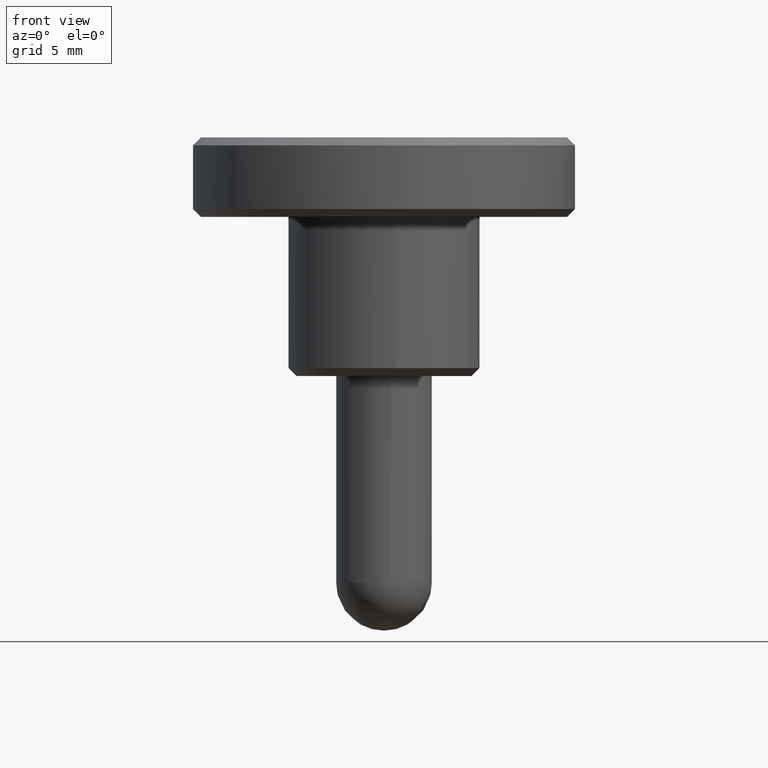
[diagram: clean part render]
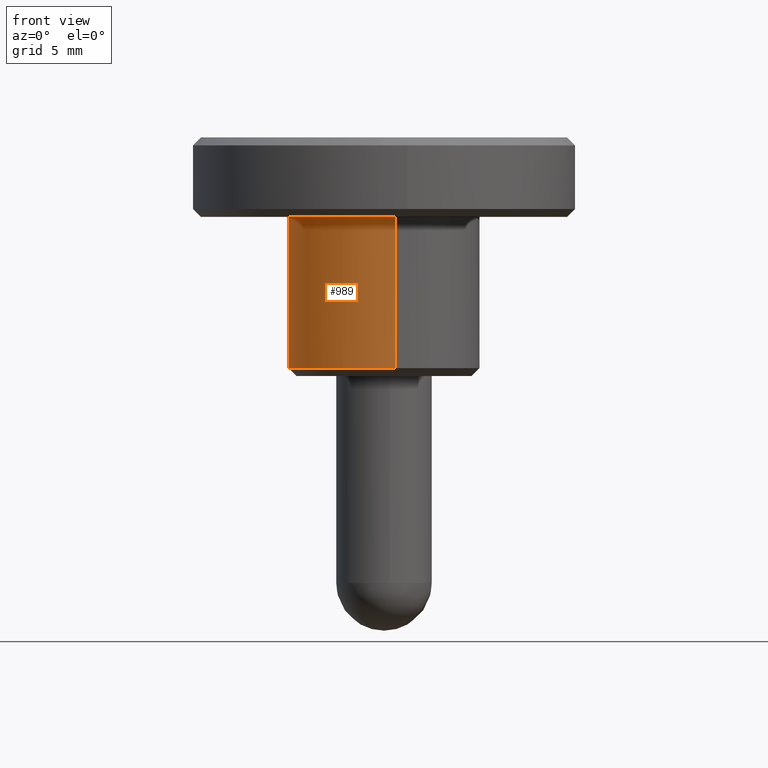
[diagram: same view with one face highlighted and labeled with its STEP entity id]
A machine part, front view. The second image highlights one B-rep face of the part: STEP entity #989.
In plain terms, the highlighted face is a freeform B-spline surface patch.
Its self-contained STEP definition (entity closure, byte-faithful):
#498=CARTESIAN_POINT('',(-2.425292591929944,-5.487982857437931,0.500000000000184));
#499=VERTEX_POINT('',#498);
#500=CARTESIAN_POINT('',(0.744766788128623,-5.953597436113652,0.499999999999956));
#501=VERTEX_POINT('',#500);
#502=CARTESIAN_POINT('',(-2.425292591929945,-5.487982857437931,0.500000000000184));
#503=CARTESIAN_POINT('',(-1.266693703514264,-6.000000000000001,0.499999999999945));
#504=CARTESIAN_POINT('',(0.0,-6.0,0.499999999999945));
#505=CARTESIAN_POINT('',(0.373828945859550,-5.999999999999999,0.499999999999945));
#506=CARTESIAN_POINT('',(0.744766788128623,-5.953597436113652,0.499999999999956));
#514=(BOUNDED_CURVE()B_SPLINE_CURVE(2,(#502,#503,#504,#505,#506),.UNSPECIFIED.,.F.,.U.)B_SPLINE_CURVE_WITH_KNOTS((3,2,3),(0.181361578459786,0.250000000000000,0.271473894288862),.UNSPECIFIED.)CURVE()GEOMETRIC_REPRESENTATION_ITEM()RATIONAL_B_SPLINE_CURVE((0.883326595751729,0.919585087123248,1.0,0.974841767925101,0.954005497578771))REPRESENTATION_ITEM(''));
#515=EDGE_CURVE('',#499,#501,#514,.T.);
#558=CARTESIAN_POINT('',(-0.052357741440624,5.999771551225965,0.499999999999591));
#559=VERTEX_POINT('',#558);
#616=CARTESIAN_POINT('',(-6.0,0.0,0.499999999999945));
#617=VERTEX_POINT('',#616);
#618=CARTESIAN_POINT('',(-6.0,0.0,0.499999999999945));
#619=CARTESIAN_POINT('',(-6.0,-3.908220015545708,0.499999999999945));
#620=CARTESIAN_POINT('',(-2.425292591929945,-5.487982857437931,0.500000000000184));
#628=(BOUNDED_CURVE()B_SPLINE_CURVE(2,(#618,#619,#620),.UNSPECIFIED.,.F.,.U.)B_SPLINE_CURVE_WITH_KNOTS((3,3),(0.0,0.181361578459786),.UNSPECIFIED.)CURVE()GEOMETRIC_REPRESENTATION_ITEM()RATIONAL_B_SPLINE_CURVE((1.0,0.787521694063300,0.883326595751729))REPRESENTATION_ITEM(''));
#629=EDGE_CURVE('',#617,#499,#628,.T.);
#631=CARTESIAN_POINT('',(-0.052357741440624,5.999771551225965,0.499999999999591));
#632=CARTESIAN_POINT('',(-6.000000000000001,5.947868722444771,0.499999999999945));
#633=CARTESIAN_POINT('',(-6.0,0.0,0.499999999999945));
#641=(BOUNDED_CURVE()B_SPLINE_CURVE(2,(#631,#632,#633),.UNSPECIFIED.,.F.,.U.)B_SPLINE_CURVE_WITH_KNOTS((3,3),(0.751539851132867,1.0),.UNSPECIFIED.)CURVE()GEOMETRIC_REPRESENTATION_ITEM()RATIONAL_B_SPLINE_CURVE((0.996414128082234,0.708910829005743,1.0))REPRESENTATION_ITEM(''));
#642=EDGE_CURVE('',#559,#617,#641,.T.);
#883=CARTESIAN_POINT('',(-0.052355695917519,5.999771569075994,10.0));
#884=VERTEX_POINT('',#883);
#885=CARTESIAN_POINT('',(-0.052357741440624,5.999771551225965,0.499999999999591));
#886=CARTESIAN_POINT('',(-0.052355695917519,5.999771569075994,10.0));
#887=QUASI_UNIFORM_CURVE('',1,(#885,#886),.UNSPECIFIED.,.F.,.U.);
#888=EDGE_CURVE('',#559,#884,#887,.T.);
#907=CARTESIAN_POINT('',(0.744759964917347,-5.953598289655638,10.0));
#908=VERTEX_POINT('',#907);
#922=CARTESIAN_POINT('',(0.744766788128623,-5.953597436113652,0.499999999999956));
#923=CARTESIAN_POINT('',(0.744759964917347,-5.953598289655638,10.0));
#924=QUASI_UNIFORM_CURVE('',1,(#922,#923),.UNSPECIFIED.,.F.,.U.);
#925=EDGE_CURVE('',#501,#908,#924,.T.);
#930=CARTESIAN_POINT('',(-0.052359212990243,5.999771538385026,0.262499999999943));
#931=CARTESIAN_POINT('',(-6.052130751375269,5.947412325394783,0.262499999999943));
#932=CARTESIAN_POINT('',(-5.999771538385026,-0.052359212990243,0.262499999999943));
#933=CARTESIAN_POINT('',(-5.947412325394783,-6.052130751375269,0.262499999999943));
#934=CARTESIAN_POINT('',(0.052359212990243,-5.999771538385026,0.262499999999943));
#935=CARTESIAN_POINT('',(0.399900953749042,-5.996738587561654,0.262499999999943));
#936=CARTESIAN_POINT('',(0.744768012478976,-5.953597282953231,0.262499999999943));
#937=CARTESIAN_POINT('',(-0.052359212990243,5.999771538385026,10.243437500000001));
#938=CARTESIAN_POINT('',(-6.052130751375269,5.947412325394783,10.243437500000004));
#939=CARTESIAN_POINT('',(-5.999771538385026,-0.052359212990243,10.243437500000001));
#940=CARTESIAN_POINT('',(-5.947412325394783,-6.052130751375269,10.243437500000004));
#941=CARTESIAN_POINT('',(0.052359212990243,-5.999771538385026,10.243437500000001));
#942=CARTESIAN_POINT('',(0.399900953749042,-5.996738587561654,10.243437500000002));
#943=CARTESIAN_POINT('',(0.744768012478976,-5.953597282953231,10.243437500000006));
#951=(BOUNDED_SURFACE()B_SPLINE_SURFACE(2,1,((#930,#937),(#931,#938),(#932,#939),(#933,#940),(#934,#941),(#935,#942),(#936,#943)),.UNSPECIFIED.,.F.,.F.,.U.)B_SPLINE_SURFACE_WITH_KNOTS((3,2,2,3),(2,2),(0.0,9.941125496954278,19.882250993908560,20.677541033664902),(0.0,9.980937500000064),.UNSPECIFIED.)GEOMETRIC_REPRESENTATION_ITEM()RATIONAL_B_SPLINE_SURFACE(((1.0,1.0),(0.707106781186548,0.707106781186548),(1.0,1.0),(0.707106781186548,0.707106781186548),(1.0,1.0),(0.976568542494924,0.976568542494924),(0.956886118190660,0.956886118190660)))REPRESENTATION_ITEM('')SURFACE());
#952=ORIENTED_EDGE('',*,*,#629,.T.);
#953=ORIENTED_EDGE('',*,*,#515,.T.);
#954=ORIENTED_EDGE('',*,*,#925,.T.);
#955=CARTESIAN_POINT('',(-6.0,0.0,10.0));
#956=VERTEX_POINT('',#955);
#957=CARTESIAN_POINT('',(0.744759964917347,-5.953598289655637,10.0));
#958=CARTESIAN_POINT('',(0.373825494317734,-6.0,10.0));
#959=CARTESIAN_POINT('',(0.0,-6.0,10.0));
#960=CARTESIAN_POINT('',(-6.0,-6.0,10.000000000000002));
#961=CARTESIAN_POINT('',(-6.0,0.0,10.0));
#969=(BOUNDED_CURVE()B_SPLINE_CURVE(2,(#957,#958,#959,#960,#961),.UNSPECIFIED.,.F.,.U.)B_SPLINE_CURVE_WITH_KNOTS((3,2,3),(0.728526298990398,0.750000000000000,1.0),.UNSPECIFIED.)CURVE()GEOMETRIC_REPRESENTATION_ITEM()RATIONAL_B_SPLINE_CURVE((0.954005872659566,0.974841994365839,1.0,0.707106781186548,1.0))REPRESENTATION_ITEM(''));
#970=EDGE_CURVE('',#908,#956,#969,.T.);
#971=ORIENTED_EDGE('',*,*,#970,.T.);
#972=CARTESIAN_POINT('',(-6.0,0.0,10.0));
#973=CARTESIAN_POINT('',(-6.0,5.947870750350011,10.0));
#974=CARTESIAN_POINT('',(-0.052355695917519,5.999771569075994,10.000000000000002));
#982=(BOUNDED_CURVE()B_SPLINE_CURVE(2,(#972,#973,#974),.UNSPECIFIED.,.F.,.U.)B_SPLINE_CURVE_WITH_KNOTS((3,3),(0.0,0.248460208920117),.UNSPECIFIED.)CURVE()GEOMETRIC_REPRESENTATION_ITEM()RATIONAL_B_SPLINE_CURVE((1.0,0.708910758649296,0.996414267061746))REPRESENTATION_ITEM(''));
#983=EDGE_CURVE('',#956,#884,#982,.T.);
#984=ORIENTED_EDGE('',*,*,#983,.T.);
#985=ORIENTED_EDGE('',*,*,#888,.F.);
#986=ORIENTED_EDGE('',*,*,#642,.T.);
#987=EDGE_LOOP('',(#952,#953,#954,#971,#984,#985,#986));
#988=FACE_OUTER_BOUND('',#987,.T.);
#989=ADVANCED_FACE('',(#988),#951,.T.);